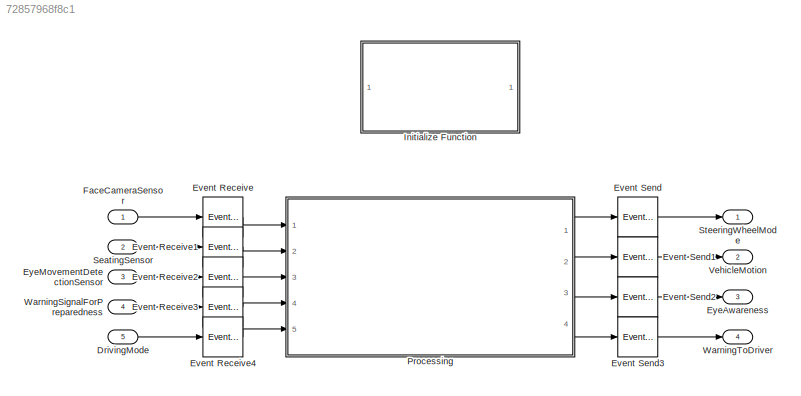
MODEL slx_72857968f8c1
KIND model
CONFIG AbsTol = auto
CONFIG EnableMultiTasking = off
CONFIG FixedStep = auto
CONFIG MaxStep = auto
CONFIG MinStep = auto
CONFIG RelTol = 1e-3
CONFIG SampleTimeConstraint = Unconstrained
CONFIG SolverName = FixedStepDiscrete
CONFIG StartTime = 0.0
CONFIG StopTime = 10.0
WORKSPACE source: MATLAB code (in-file)
WORKSPACE cmdLim = Simulink.Parameter
WORKSPACE code: cmdLim.Value = 15;
WORKSPACE code: cmdLim.Description = 'Limit for controlling the maximum surface command angle.';
WORKSPACE code: cmdLim.Min = 0;
WORKSPACE code: cmdLim.Max = 90;
WORKSPACE code: cmdLim.DocUnits = 'deg';
WORKSPACE dispGain = Simulink.Parameter
WORKSPACE code: dispGain.Value = 0.75;
WORKSPACE code: dispGain.Description = 'Gain applied to the displacement error.';
WORKSPACE code: dispGain.Min = 0;
WORKSPACE code: dispGain.Max = [];
WORKSPACE code: dispGain.DocUnits = 'deg/sec/deg';
WORKSPACE dispLim = Simulink.Parameter
WORKSPACE code: dispLim.Value = 30;
WORKSPACE code: dispLim.Description = 'Limit for controlling the maximum commanded angle.';
WORKSPACE code: dispLim.Min = 0;
WORKSPACE code: dispLim.Max = 180;
WORKSPACE code: dispLim.DocUnits = 'deg';
WORKSPACE intGain = Simulink.Parameter
WORKSPACE code: intGain.Value = 0.5;
WORKSPACE code: intGain.Description = 'Gain applied to the integral error.';
WORKSPACE code: intGain.Min = 0;
WORKSPACE code: intGain.Max = [];
WORKSPACE code: intGain.DocUnits = 'deg/sec/deg/sec';
WORKSPACE intLim = Simulink.Parameter
WORKSPACE code: intLim.Value = 5;
WORKSPACE code: intLim.Description = 'Limit for controlling the maximum commanded angle.';
WORKSPACE code: intLim.Min = 0;
WORKSPACE code: intLim.Max = 90;
WORKSPACE code: intLim.DocUnits = 'deg';
WORKSPACE rateGain = Simulink.Parameter
WORKSPACE code: rateGain.Value = 2;
WORKSPACE code: rateGain.Description = 'Gain applied to the rate error.';
WORKSPACE code: rateGain.Min = 0;
WORKSPACE code: rateGain.Max = [];
WORKSPACE code: rateGain.DocUnits = 'deg/deg/sec';
WORKSPACE rateLim = Simulink.Parameter
WORKSPACE code: rateLim.Value = 6;
WORKSPACE code: rateLim.Description = 'Limit for controlling the maximum commanded angle.';
WORKSPACE code: rateLim.Min = 0;
WORKSPACE code: rateLim.Max = 180;
WORKSPACE code: rateLim.DocUnits = 'deg/sec';
WORKSPACE hdgGain = Simulink.Parameter
WORKSPACE code: hdgGain.Value = 0.015;
BLOCK [Inport] DrivingMode
  OutputPortMessageModes = m
  Port = 5
BLOCK [Reference] Event Receive  REF=autosarlibaprouting/Event Receive
  Ports = [1, 1]
  SourceBlock = autosarlibaprouting/Event Receive
  SourceProductBaseCode = AS
  SourceType = Event Receive
BLOCK [Reference] Event Receive1  REF=autosarlibaprouting/Event Receive
  Ports = [1, 1]
  SourceBlock = autosarlibaprouting/Event Receive
  SourceProductBaseCode = AS
  SourceType = Event Receive
BLOCK [Reference] Event Receive2  REF=autosarlibaprouting/Event Receive
  Ports = [1, 1]
  SourceBlock = autosarlibaprouting/Event Receive
  SourceProductBaseCode = AS
  SourceType = Event Receive
BLOCK [Reference] Event Receive3  REF=autosarlibaprouting/Event Receive
  Ports = [1, 1]
  SourceBlock = autosarlibaprouting/Event Receive
  SourceProductBaseCode = AS
  SourceType = Event Receive
BLOCK [Reference] Event Receive4  REF=autosarlibaprouting/Event Receive
  Ports = [1, 1]
  SourceBlock = autosarlibaprouting/Event Receive
  SourceProductBaseCode = AS
  SourceType = Event Receive
BLOCK [Reference] Event Send  REF=autosarlibaprouting/Event Send
  Ports = [1, 1]
  SourceBlock = autosarlibaprouting/Event Send
  SourceProductBaseCode = AS
  SourceType = Event Send
BLOCK [Reference] Event Send1  REF=autosarlibaprouting/Event Send
  Ports = [1, 1]
  SourceBlock = autosarlibaprouting/Event Send
  SourceProductBaseCode = AS
  SourceType = Event Send
BLOCK [Reference] Event Send2  REF=autosarlibaprouting/Event Send
  Ports = [1, 1]
  SourceBlock = autosarlibaprouting/Event Send
  SourceProductBaseCode = AS
  SourceType = Event Send
BLOCK [Reference] Event Send3  REF=autosarlibaprouting/Event Send
  Ports = [1, 1]
  SourceBlock = autosarlibaprouting/Event Send
  SourceProductBaseCode = AS
  SourceType = Event Send
BLOCK [Outport] EyeAwareness
  InputPortMessageModes = m
  Port = 3
  VectorParamsAs1DForOutWhenUnconnected = off
BLOCK [Inport] EyeMovementDetectionSensor
  OutputPortMessageModes = m
  Port = 3
BLOCK [Inport] FaceCameraSensor
  OutputPortMessageModes = m
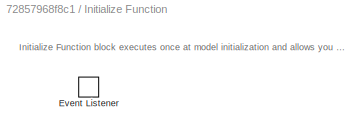
BLOCK [SubSystem] Initialize Function
  Ports = []
  RequestExecContextInheritance = off
  TreatAsAtomicUnit = on
BLOCK [EventListener] Initialize Function/Event Listener
  DisableCoverage = on
  EventName = reset
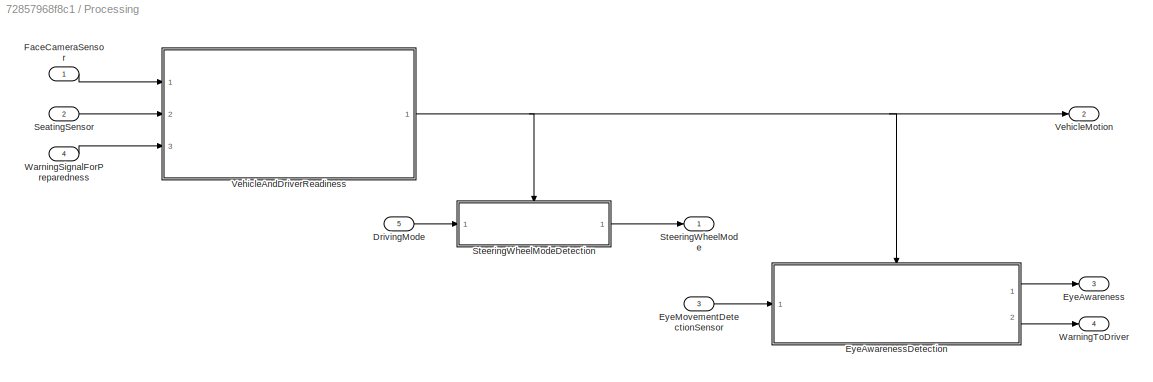
BLOCK [SubSystem] Processing
  Ports = [5, 4]
  RequestExecContextInheritance = off
  SystemSampleTime = 1
BLOCK [Inport] Processing/DrivingMode
  Port = 5
BLOCK [Outport] Processing/EyeAwareness
  Port = 3
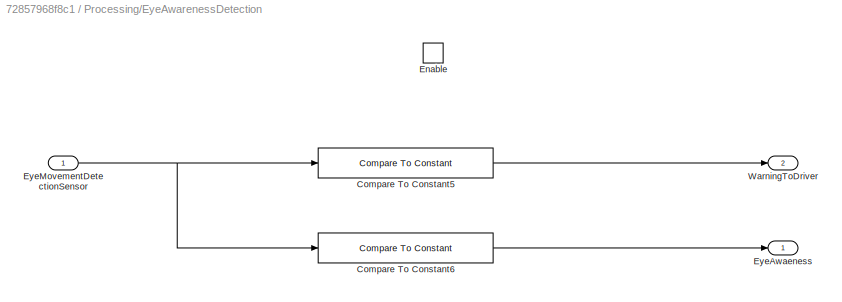
BLOCK [SubSystem] Processing/EyeAwarenessDetection
  Ports = [1, 2, 1]
  RequestExecContextInheritance = off
BLOCK [Reference] Processing/EyeAwarenessDetection/Compare To Constant5  REF=simulink/Logic and Bit
Operations/Compare
To Constant
  Ports = [1, 1]
  SourceBlock = simulink/Logic and Bit\nOperations/Compare\nTo Constant
  SourceProductBaseCode = SL
  SourceType = Compare To Constant
BLOCK [Reference] Processing/EyeAwarenessDetection/Compare To Constant6  REF=simulink/Logic and Bit
Operations/Compare
To Constant
  Ports = [1, 1]
  SourceBlock = simulink/Logic and Bit\nOperations/Compare\nTo Constant
  SourceProductBaseCode = SL
  SourceType = Compare To Constant
BLOCK [EnablePort] Processing/EyeAwarenessDetection/Enable
  Ports = []
BLOCK [Outport] Processing/EyeAwarenessDetection/EyeAwaeness
BLOCK [Inport] Processing/EyeAwarenessDetection/EyeMovementDetectionSensor
BLOCK [Outport] Processing/EyeAwarenessDetection/WarningToDriver
  Port = 2
BLOCK [Inport] Processing/EyeMovementDetectionSensor
  Port = 3
BLOCK [Inport] Processing/FaceCameraSensor
BLOCK [Inport] Processing/SeatingSensor
  Port = 2
BLOCK [Outport] Processing/SteeringWheelMode
  VectorParamsAs1DForOutWhenUnconnected = off
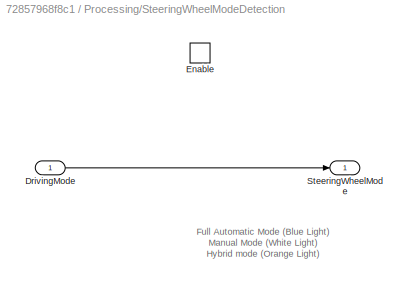
BLOCK [SubSystem] Processing/SteeringWheelModeDetection
  Ports = [1, 1, 1]
  RequestExecContextInheritance = off
BLOCK [Inport] Processing/SteeringWheelModeDetection/DrivingMode
BLOCK [EnablePort] Processing/SteeringWheelModeDetection/Enable
  Ports = []
BLOCK [Outport] Processing/SteeringWheelModeDetection/SteeringWheelMode
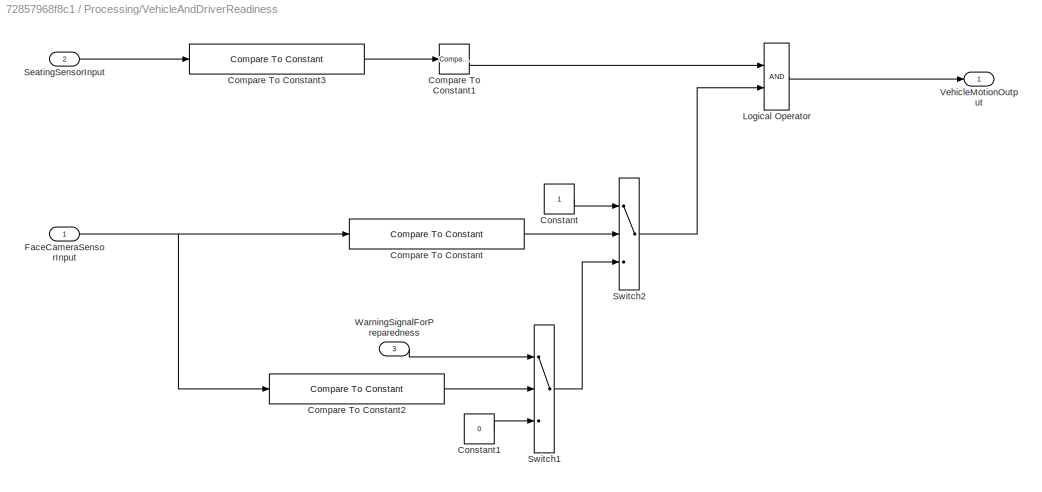
BLOCK [SubSystem] Processing/VehicleAndDriverReadiness
  Ports = [3, 1]
  RequestExecContextInheritance = off
BLOCK [Reference] Processing/VehicleAndDriverReadiness/Compare To Constant  REF=simulink/Logic and Bit
Operations/Compare
To Constant
  Ports = [1, 1]
  SourceBlock = simulink/Logic and Bit\nOperations/Compare\nTo Constant
  SourceProductBaseCode = SL
  SourceType = Compare To Constant
BLOCK [Reference] Processing/VehicleAndDriverReadiness/Compare To Constant1  REF=simulink/Logic and Bit
Operations/Compare
To Constant
  Ports = [1, 1]
  SourceBlock = simulink/Logic and Bit\nOperations/Compare\nTo Constant
  SourceProductBaseCode = SL
  SourceType = Compare To Constant
BLOCK [Reference] Processing/VehicleAndDriverReadiness/Compare To Constant2  REF=simulink/Logic and Bit
Operations/Compare
To Constant
  Ports = [1, 1]
  SourceBlock = simulink/Logic and Bit\nOperations/Compare\nTo Constant
  SourceProductBaseCode = SL
  SourceType = Compare To Constant
BLOCK [Reference] Processing/VehicleAndDriverReadiness/Compare To Constant3  REF=simulink/Logic and Bit
Operations/Compare
To Constant
  Ports = [1, 1]
  SourceBlock = simulink/Logic and Bit\nOperations/Compare\nTo Constant
  SourceProductBaseCode = SL
  SourceType = Compare To Constant
BLOCK [Constant] Processing/VehicleAndDriverReadiness/Constant
BLOCK [Constant] Processing/VehicleAndDriverReadiness/Constant1
  Value = 0
BLOCK [Inport] Processing/VehicleAndDriverReadiness/FaceCameraSensorInput
BLOCK [Logic] Processing/VehicleAndDriverReadiness/Logical Operator
  AllPortsSameDT = off
  OutDataTypeStr = boolean
  Ports = [2, 1]
BLOCK [Inport] Processing/VehicleAndDriverReadiness/SeatingSensorInput
  Port = 2
BLOCK [Switch] Processing/VehicleAndDriverReadiness/Switch1
  Criteria = u2 > Threshold
  InputSameDT = off
  SaturateOnIntegerOverflow = off
BLOCK [Switch] Processing/VehicleAndDriverReadiness/Switch2
  Criteria = u2 > Threshold
  InputSameDT = off
  SaturateOnIntegerOverflow = off
BLOCK [Outport] Processing/VehicleAndDriverReadiness/VehicleMotionOutput
  VectorParamsAs1DForOutWhenUnconnected = off
BLOCK [Inport] Processing/VehicleAndDriverReadiness/WarningSignalForPreparedness
  Port = 3
BLOCK [Outport] Processing/VehicleMotion
  Port = 2
  VectorParamsAs1DForOutWhenUnconnected = off
BLOCK [Inport] Processing/WarningSignalForPreparedness
  Port = 4
BLOCK [Outport] Processing/WarningToDriver
  Port = 4
BLOCK [Inport] SeatingSensor
  OutputPortMessageModes = m
  Port = 2
BLOCK [Outport] SteeringWheelMode
  InputPortMessageModes = m
  VectorParamsAs1DForOutWhenUnconnected = off
BLOCK [Outport] VehicleMotion
  InputPortMessageModes = m
  Port = 2
  VectorParamsAs1DForOutWhenUnconnected = off
BLOCK [Inport] WarningSignalForPreparedness
  OutputPortMessageModes = m
  Port = 4
BLOCK [Outport] WarningToDriver
  InputPortMessageModes = m
  Port = 4
  VectorParamsAs1DForOutWhenUnconnected = off
ANNOTATION Initialize Function: Initialize Function block executes once at model initialization and allows you to compute and override initial values of states in various blocks in the model.
ANNOTATION Processing/SteeringWheelModeDetection: Full Automatic Mode (Blue Light) Manual Mode (White Light) Hybrid mode (Orange Light)
LINE DrivingMode:1 -> Event Receive4:1
LINE Event Receive1:1 -> Processing:2
LINE Event Receive2:1 -> Processing:3
LINE Event Receive3:1 -> Processing:4
LINE Event Receive4:1 -> Processing:5
LINE Event Receive:1 -> Processing:1
LINE Event Send1:1 -> VehicleMotion:1
LINE Event Send2:1 -> EyeAwareness:1
LINE Event Send3:1 -> WarningToDriver:1
LINE Event Send:1 -> SteeringWheelMode:1
LINE EyeMovementDetectionSensor:1 -> Event Receive2:1
LINE FaceCameraSensor:1 -> Event Receive:1
LINE Processing/DrivingMode:1 -> Processing/SteeringWheelModeDetection:1
LINE Processing/EyeAwarenessDetection/Compare To Constant5:1 -> Processing/EyeAwarenessDetection/WarningToDriver:1
LINE Processing/EyeAwarenessDetection/Compare To Constant6:1 -> Processing/EyeAwarenessDetection/EyeAwaeness:1
NET Processing/EyeAwarenessDetection/EyeMovementDetectionSensor:1 -> Processing/EyeAwarenessDetection/Compare To Constant5:1, Processing/EyeAwarenessDetection/Compare To Constant6:1
LINE Processing/EyeAwarenessDetection:1 -> Processing/EyeAwareness:1
LINE Processing/EyeAwarenessDetection:2 -> Processing/WarningToDriver:1
LINE Processing/EyeMovementDetectionSensor:1 -> Processing/EyeAwarenessDetection:1
LINE Processing/FaceCameraSensor:1 -> Processing/VehicleAndDriverReadiness:1
LINE Processing/SeatingSensor:1 -> Processing/VehicleAndDriverReadiness:2
LINE Processing/SteeringWheelModeDetection/DrivingMode:1 -> Processing/SteeringWheelModeDetection/SteeringWheelMode:1
LINE Processing/SteeringWheelModeDetection:1 -> Processing/SteeringWheelMode:1
LINE Processing/VehicleAndDriverReadiness/Compare To Constant1:1 -> Processing/VehicleAndDriverReadiness/Logical Operator:1
LINE Processing/VehicleAndDriverReadiness/Compare To Constant2:1 -> Processing/VehicleAndDriverReadiness/Switch1:2
LINE Processing/VehicleAndDriverReadiness/Compare To Constant3:1 -> Processing/VehicleAndDriverReadiness/Compare To Constant1:1
LINE Processing/VehicleAndDriverReadiness/Compare To Constant:1 -> Processing/VehicleAndDriverReadiness/Switch2:2
LINE Processing/VehicleAndDriverReadiness/Constant1:1 -> Processing/VehicleAndDriverReadiness/Switch1:3
LINE Processing/VehicleAndDriverReadiness/Constant:1 -> Processing/VehicleAndDriverReadiness/Switch2:1
NET Processing/VehicleAndDriverReadiness/FaceCameraSensorInput:1 -> Processing/VehicleAndDriverReadiness/Compare To Constant2:1, Processing/VehicleAndDriverReadiness/Compare To Constant:1
LINE Processing/VehicleAndDriverReadiness/Logical Operator:1 -> Processing/VehicleAndDriverReadiness/VehicleMotionOutput:1
LINE Processing/VehicleAndDriverReadiness/SeatingSensorInput:1 -> Processing/VehicleAndDriverReadiness/Compare To Constant3:1
LINE Processing/VehicleAndDriverReadiness/Switch1:1 -> Processing/VehicleAndDriverReadiness/Switch2:3
LINE Processing/VehicleAndDriverReadiness/Switch2:1 -> Processing/VehicleAndDriverReadiness/Logical Operator:2
LINE Processing/VehicleAndDriverReadiness/WarningSignalForPreparedness:1 -> Processing/VehicleAndDriverReadiness/Switch1:1
NET Processing/VehicleAndDriverReadiness:1 -> Processing/EyeAwarenessDetection:enable, Processing/SteeringWheelModeDetection:enable, Processing/VehicleMotion:1
LINE Processing/WarningSignalForPreparedness:1 -> Processing/VehicleAndDriverReadiness:3
LINE Processing:1 -> Event Send:1
LINE Processing:2 -> Event Send1:1
LINE Processing:3 -> Event Send2:1
LINE Processing:4 -> Event Send3:1
LINE SeatingSensor:1 -> Event Receive1:1
LINE WarningSignalForPreparedness:1 -> Event Receive3:1
note: NET lines group one-source signal fan-out (src -> all destinations, sorted); 1:1 wires keep LINE
